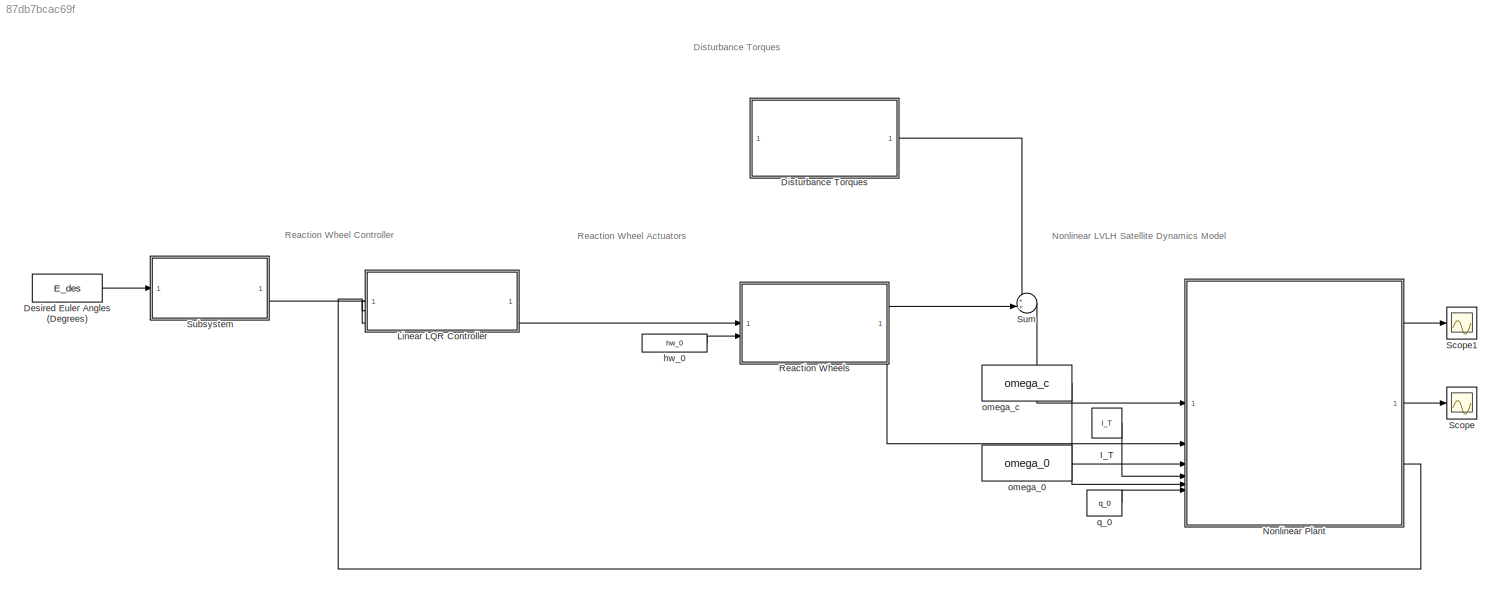
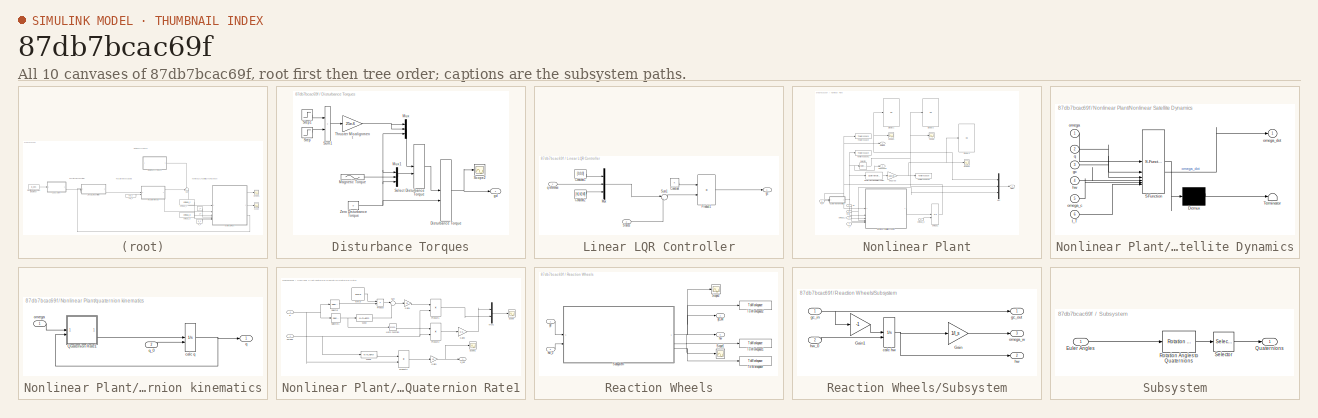
[diagram: thumbnail index - all 10 canvases of the model, root first then tree order]
MODEL slx_87db7bcac69f
KIND model
CONFIG AbsTol = auto
CONFIG EnableMultiTasking = off
CONFIG FixedStep = .1
CONFIG MaxStep = 0.1
CONFIG MinStep = auto
CONFIG RelTol = 1e-3
CONFIG SampleTimeConstraint = Unconstrained
CONFIG SolverName = VariableStepAuto
CONFIG StartTime = 0.0
CONFIG StopTime = 720
BLOCK [Constant] Desired Euler Angles (Degrees)
  Value = E_des
BLOCK [SubSystem] Disturbance Torques
BLOCK [ManualSwitch] Disturbance Torques/Disturbance Torque
BLOCK [Sin] Disturbance Torques/Magnetic Torque
  Amplitude = 2e-6
  Frequency = 2*omega_c
  SampleTime = 0
BLOCK [Mux] Disturbance Torques/Mux
  DisplayOption = bar
  Inputs = 3
BLOCK [Mux] Disturbance Torques/Mux1
  DisplayOption = bar
  Inputs = 3
BLOCK [Scope] Disturbance Torques/Scope2
  Floating = off
  NumInputPorts = 1
  ScopeSpecificationString = Simulink.scopes.TimeScopeBlockCfg('CurrentConfiguration', extmgr.ConfigurationSet(extmgr.Configuration('Core','General UI',true),extmgr.Configuration('Core','Source UI',true),extmgr.Configuration('Sources','WiredSimulink',true,'DataLoggingVariableName','ScopeData4'),extmgr.Configuration('Visuals','Time Domain',true,'SerializedDisplays',{struct('MinYLimReal','-0.000003','MaxYLimReal','0.000028','YL...<+1488ch>
BLOCK [ManualSwitch] Disturbance Torques/Select Disturbance Torque
BLOCK [Step] Disturbance Torques/Step
  After = -1
  SampleTime = 0
  Time = 300
BLOCK [Step] Disturbance Torques/Step1
  SampleTime = 0
  Time = 0
BLOCK [Sum] Disturbance Torques/Sum1
  IconShape = rectangular
BLOCK [Gain] Disturbance Torques/Thruster Misalignment
  Gain = 25e-6
BLOCK [Constant] Disturbance Torques/Zero Disturbance Torque
  Value = 0
BLOCK [Outport] Disturbance Torques/gd
BLOCK [Constant] I_T
  Value = I_T
BLOCK [SubSystem] Linear LQR Controller
  PortSchema = {"entries":[{"content":{"sides":[{"content":{"connectorIds":["Out1"]},"type":"ConnectorPlacement.EquallySpacedRectSide","uuid":"ee26b0f2-a486-452c-b447-e59bb95ac0cf"},{"content":{"connectorIds":["In1","In2"],"side":"RIGHT"},"type":"ConnectorPlacement.EquallySpacedRectSide","uuid":"56766a12-bb91-439a-8915-7afd5112c149"},{"content":{"connectorIds":[],"side":"TOP"},"type":"ConnectorPlacement.EquallyS...<+246ch>
BLOCK [Constant] Linear LQR Controller/Constant
  Value = K
BLOCK [Constant] Linear LQR Controller/Constant1
  Value = [0,0,0]
BLOCK [Constant] Linear LQR Controller/Constant2
  Value = [h1,h2,h3]
BLOCK [Mux] Linear LQR Controller/Mux
  DisplayOption = bar
  Inputs = 3
BLOCK [Product] Linear LQR Controller/Product1
  Multiplication = Matrix(*)
BLOCK [Inport] Linear LQR Controller/States
  Port = 2
BLOCK [Sum] Linear LQR Controller/Sum1
  Inputs = |+-
BLOCK [Outport] Linear LQR Controller/gc
BLOCK [Inport] Linear LQR Controller/q reference
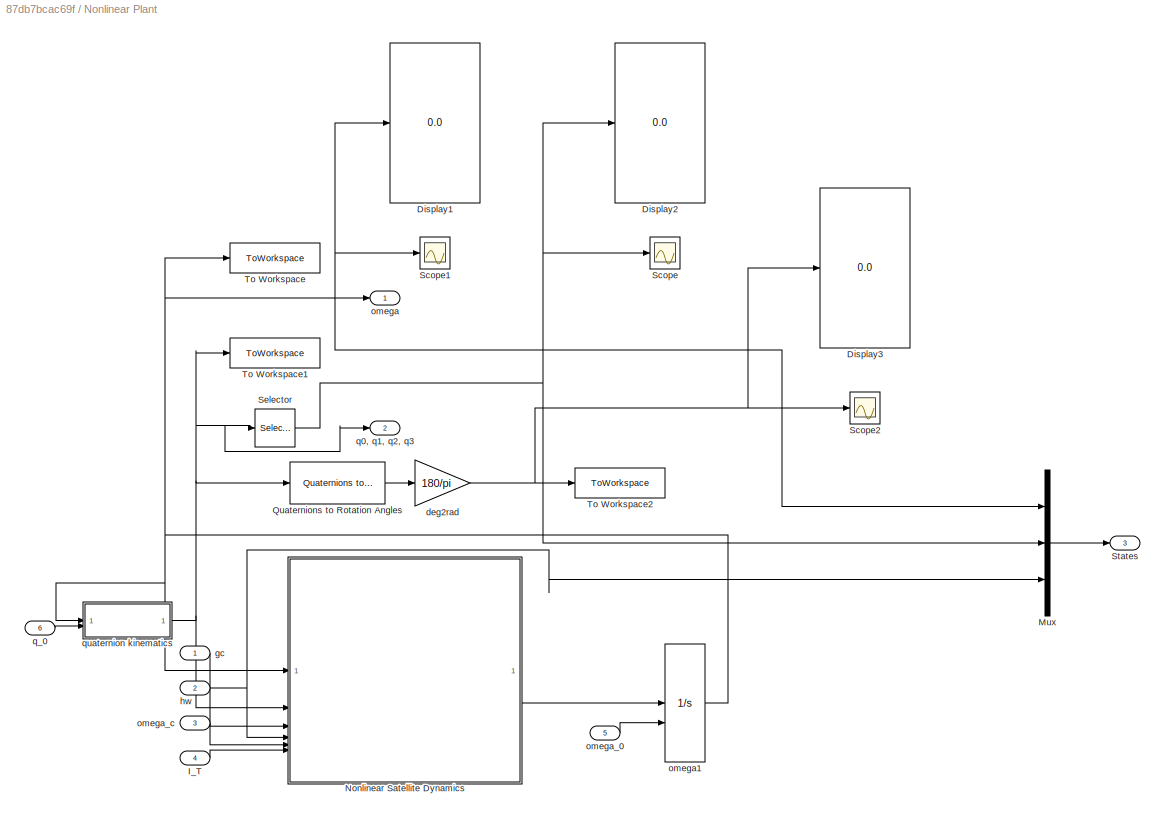
BLOCK [SubSystem] Nonlinear Plant
BLOCK [Display] Nonlinear Plant/Display1
  Decimation = 1
BLOCK [Display] Nonlinear Plant/Display2
  Decimation = 1
BLOCK [Display] Nonlinear Plant/Display3
  Decimation = 1
BLOCK [Inport] Nonlinear Plant/I_T
  Port = 4
BLOCK [Mux] Nonlinear Plant/Mux
  DisplayOption = bar
  Inputs = 3
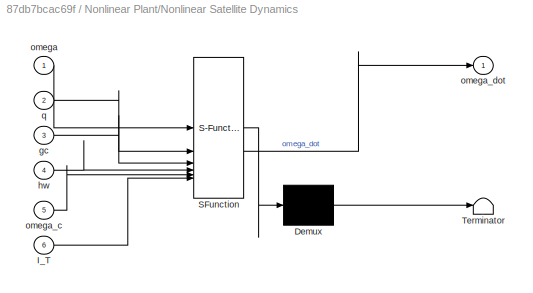
BLOCK [SubSystem] Nonlinear Plant/Nonlinear Satellite Dynamics
  ErrorFcn = Stateflow.Translate.translate
  LibrarySourceBlock = simulink/User-Defined\nFunctions/MATLAB Function
  PermitHierarchicalResolution = ExplicitOnly
  SFBlockType = MATLAB Function
  TreatAsAtomicUnit = on
BLOCK [Demux] Nonlinear Plant/Nonlinear Satellite Dynamics/ Demux 
  Outputs = 1
BLOCK [S-Function] Nonlinear Plant/Nonlinear Satellite Dynamics/ SFunction 
  EnableBusSupport = on
  FunctionName = sf_sfun
  PortCounts = [6 2]
  SFcnIsStateOwnerBlock = off
  SFunctionDeploymentMode = off
  Tag = Stateflow S-Function 3
BLOCK [Terminator] Nonlinear Plant/Nonlinear Satellite Dynamics/ Terminator 
BLOCK [Inport] Nonlinear Plant/Nonlinear Satellite Dynamics/I_T
  Port = 6
BLOCK [Inport] Nonlinear Plant/Nonlinear Satellite Dynamics/gc
  Port = 3
BLOCK [Inport] Nonlinear Plant/Nonlinear Satellite Dynamics/hw
  Port = 4
BLOCK [Inport] Nonlinear Plant/Nonlinear Satellite Dynamics/omega
BLOCK [Inport] Nonlinear Plant/Nonlinear Satellite Dynamics/omega_c
  Port = 5
BLOCK [Outport] Nonlinear Plant/Nonlinear Satellite Dynamics/omega_dot
BLOCK [Inport] Nonlinear Plant/Nonlinear Satellite Dynamics/q
  Port = 2
BLOCK [Reference] Nonlinear Plant/Quaternions to Rotation Angles  REF=sharedtransform/Quaternions to Rotation Angles
  AttributesFormatString = Rotation Order: %<rotationOrder>
  LibrarySourceBlock = aerolibtransform2/Quaternions to Rotation Angles
  SourceBlock = sharedtransform/Quaternions to Rotation Angles
  SourceType = Quat2Ang
BLOCK [Scope] Nonlinear Plant/Scope
  Floating = off
  NumInputPorts = 1
  ScopeSpecificationString = Simulink.scopes.TimeScopeBlockCfg('CurrentConfiguration', extmgr.ConfigurationSet(extmgr.Configuration('Core','General UI',true),extmgr.Configuration('Core','Source UI',true),extmgr.Configuration('Sources','WiredSimulink',true),extmgr.Configuration('Visuals','Time Domain',true,'SerializedDisplays',{struct('MinYLimReal','-0.00568','MaxYLimReal','0.05112','YLabelReal','','MinYLimMag','0.00000','MaxY...<+1383ch>
BLOCK [Scope] Nonlinear Plant/Scope1
  Floating = off
  NumInputPorts = 1
  ScopeSpecificationString = Simulink.scopes.TimeScopeBlockCfg('CurrentConfiguration', extmgr.ConfigurationSet(extmgr.Configuration('Core','General UI',true),extmgr.Configuration('Core','Source UI',true),extmgr.Configuration('Sources','WiredSimulink',true,'DataLoggingVariableName','ScopeData2'),extmgr.Configuration('Visuals','Time Domain',true,'SerializedDisplays',{struct('MinYLimReal','-0.08705','MaxYLimReal','0.218','YLabel...<+1479ch>
BLOCK [Scope] Nonlinear Plant/Scope2
  Floating = off
  NumInputPorts = 1
  ScopeSpecificationString = Simulink.scopes.TimeScopeBlockCfg('CurrentConfiguration', extmgr.ConfigurationSet(extmgr.Configuration('Core','General UI',true),extmgr.Configuration('Core','Source UI',true),extmgr.Configuration('Sources','WiredSimulink',true,'DataLoggingVariableName','ScopeData1'),extmgr.Configuration('Visuals','Time Domain',true,'SerializedDisplays',{struct('MinYLimReal','-56.14746','MaxYLimReal','56.23861','YL...<+1496ch>
BLOCK [Selector] Nonlinear Plant/Selector
  IndexOptions = Index vector (dialog)
  Indices = [2 3 4]
  InputPortWidth = 4
  OutputSizes = 1
BLOCK [Outport] Nonlinear Plant/States
  Port = 3
BLOCK [ToWorkspace] Nonlinear Plant/To Workspace
  FixptAsFi = on
  MaxDataPoints = inf
  SampleTime = -1
  SaveFormat = Timeseries
  VariableName = omega
BLOCK [ToWorkspace] Nonlinear Plant/To Workspace1
  FixptAsFi = on
  MaxDataPoints = inf
  SampleTime = -1
  SaveFormat = Timeseries
  VariableName = q
BLOCK [ToWorkspace] Nonlinear Plant/To Workspace2
  FixptAsFi = on
  MaxDataPoints = inf
  SampleTime = -1
  SaveFormat = Timeseries
  VariableName = RPY
BLOCK [Gain] Nonlinear Plant/deg2rad
  Gain = 180/pi
BLOCK [Inport] Nonlinear Plant/gc
BLOCK [Inport] Nonlinear Plant/hw
  Port = 2
BLOCK [Outport] Nonlinear Plant/omega
BLOCK [Integrator] Nonlinear Plant/omega1
  InitialConditionSource = external
BLOCK [Inport] Nonlinear Plant/omega_0
  Port = 5
BLOCK [Inport] Nonlinear Plant/omega_c
  Port = 3
BLOCK [Outport] Nonlinear Plant/q0, q1, q2, q3
  Port = 2
BLOCK [Inport] Nonlinear Plant/q_0
  Port = 6
BLOCK [SubSystem] Nonlinear Plant/quaternion kinematics
BLOCK [SubSystem] Nonlinear Plant/quaternion kinematics/Quaternion Rate1
BLOCK [Gain] Nonlinear Plant/quaternion kinematics/Quaternion Rate1/Gain1
  Gain = 0.5
BLOCK [Gain] Nonlinear Plant/quaternion kinematics/Quaternion Rate1/Gain2
  Gain = -0.5
BLOCK [Gain] Nonlinear Plant/quaternion kinematics/Quaternion Rate1/Gain3
  Gain = 0.5
BLOCK [Math] Nonlinear Plant/quaternion kinematics/Quaternion Rate1/Math Function
  Operator = transpose
BLOCK [Mux] Nonlinear Plant/quaternion kinematics/Quaternion Rate1/Mux1
  DisplayOption = bar
  Inputs = 2
BLOCK [Product] Nonlinear Plant/quaternion kinematics/Quaternion Rate1/Product
BLOCK [Product] Nonlinear Plant/quaternion kinematics/Quaternion Rate1/Product1
  Multiplication = Matrix(*)
BLOCK [Product] Nonlinear Plant/quaternion kinematics/Quaternion Rate1/Product2
  Multiplication = Matrix(*)
BLOCK [Product] Nonlinear Plant/quaternion kinematics/Quaternion Rate1/Product3
  Multiplication = Matrix(*)
BLOCK [Scope] Nonlinear Plant/quaternion kinematics/Quaternion Rate1/Scope
  Floating = off
  NumInputPorts = 1
  ScopeSpecificationString = Simulink.scopes.TimeScopeBlockCfg('CurrentConfiguration', extmgr.ConfigurationSet(extmgr.Configuration('Core','General UI',true),extmgr.Configuration('Core','Source UI',true),extmgr.Configuration('Sources','WiredSimulink',true,'DataLoggingVariableName','ScopeData5'),extmgr.Configuration('Visuals','Time Domain',true,'SerializedDisplays',{struct('MinYLimReal','-0.00062','MaxYLimReal','0.00062','YLab...<+1417ch>
BLOCK [Scope] Nonlinear Plant/quaternion kinematics/Quaternion Rate1/Scope1
  Floating = off
  NumInputPorts = 1
  ScopeSpecificationString = Simulink.scopes.TimeScopeBlockCfg('CurrentConfiguration', extmgr.ConfigurationSet(extmgr.Configuration('Core','General UI',true),extmgr.Configuration('Core','Source UI',true),extmgr.Configuration('Sources','WiredSimulink',true,'DataLoggingVariableName','ScopeData6'),extmgr.Configuration('Visuals','Time Domain',true,'SerializedDisplays',{struct('MinYLimReal','-0.00062','MaxYLimReal','0.00062','YLab...<+1426ch>
BLOCK [Selector] Nonlinear Plant/quaternion kinematics/Quaternion Rate1/Selector
  IndexOptions = Index vector (dialog)
  Indices = [1]
  InputPortWidth = 4
  OutputSizes = 1
BLOCK [Selector] Nonlinear Plant/quaternion kinematics/Quaternion Rate1/Selector1
  IndexOptions = Index vector (dialog)
  Indices = [2 3 4]
  InputPortWidth = 4
  OutputSizes = 1
BLOCK [Sum] Nonlinear Plant/quaternion kinematics/Quaternion Rate1/Sum
  Inputs = |++
BLOCK [Constant] Nonlinear Plant/quaternion kinematics/Quaternion Rate1/eye(3)
  Value = eye(3)
BLOCK [Inport] Nonlinear Plant/quaternion kinematics/Quaternion Rate1/omega
BLOCK [Inport] Nonlinear Plant/quaternion kinematics/Quaternion Rate1/q
  Port = 2
BLOCK [Outport] Nonlinear Plant/quaternion kinematics/Quaternion Rate1/q_dot
BLOCK [MATLABFcn] Nonlinear Plant/quaternion kinematics/Quaternion Rate1/skew
  MATLABFcn = [0,-u(3),u(2);u(3),0,-u(1);-u(2),u(1),0]
  Output1D = off
BLOCK [MATLABFcn] Nonlinear Plant/quaternion kinematics/Quaternion Rate1/skew1
  MATLABFcn = [0,-u(1),-u(2),-u(3);u(1),0,u(3),-u(2);u(2),-u(3),0,u(1);u(3),u(2),-u(1),0]
  Output1D = off
BLOCK [Integrator] Nonlinear Plant/quaternion kinematics/calc q
  InitialConditionSource = external
BLOCK [Inport] Nonlinear Plant/quaternion kinematics/omega
BLOCK [Outport] Nonlinear Plant/quaternion kinematics/q
BLOCK [Inport] Nonlinear Plant/quaternion kinematics/q_0
  Port = 2
BLOCK [SubSystem] Reaction Wheels
BLOCK [Scope] Reaction Wheels/Scope1
  Floating = off
  NumInputPorts = 1
  ScopeSpecificationString = Simulink.scopes.TimeScopeBlockCfg('CurrentConfiguration', extmgr.ConfigurationSet(extmgr.Configuration('Core','General UI',true),extmgr.Configuration('Core','Source UI',true),extmgr.Configuration('Sources','WiredSimulink',true,'DataLoggingVariableName','ScopeData1'),extmgr.Configuration('Visuals','Time Domain',true,'SerializedDisplays',{struct('MinYLimReal','-2.81856','MaxYLimReal','4.39087','YLab...<+1460ch>
BLOCK [Scope] Reaction Wheels/Scope2
  Floating = off
  NumInputPorts = 1
  ScopeSpecificationString = Simulink.scopes.TimeScopeBlockCfg('CurrentConfiguration', extmgr.ConfigurationSet(extmgr.Configuration('Core','General UI',true),extmgr.Configuration('Core','Source UI',true),extmgr.Configuration('Sources','WiredSimulink',true,'DataLoggingVariableName','ScopeData2'),extmgr.Configuration('Visuals','Time Domain',true,'SerializedDisplays',{struct('MinYLimReal','-0.02746','MaxYLimReal','0.00575','YLab...<+1479ch>
BLOCK [SubSystem] Reaction Wheels/Subsystem
BLOCK [Gain] Reaction Wheels/Subsystem/Gain
  Gain = 1/I_s
BLOCK [Gain] Reaction Wheels/Subsystem/Gain1
  Gain = -1
BLOCK [Integrator] Reaction Wheels/Subsystem/calc hw
  InitialConditionSource = external
BLOCK [Inport] Reaction Wheels/Subsystem/gc_in
BLOCK [Outport] Reaction Wheels/Subsystem/gc_out
BLOCK [Outport] Reaction Wheels/Subsystem/hw
  Port = 2
BLOCK [Inport] Reaction Wheels/Subsystem/hw_0
  Port = 2
BLOCK [Outport] Reaction Wheels/Subsystem/omega_w
  Port = 3
BLOCK [ToWorkspace] Reaction Wheels/To Workspace
  FixptAsFi = on
  MaxDataPoints = inf
  SampleTime = -1
  SaveFormat = Timeseries
  VariableName = omega_w
BLOCK [ToWorkspace] Reaction Wheels/To Workspace1
  FixptAsFi = on
  MaxDataPoints = inf
  SampleTime = -1
  SaveFormat = Timeseries
  VariableName = hw
BLOCK [ToWorkspace] Reaction Wheels/To Workspace2
  FixptAsFi = on
  MaxDataPoints = inf
  SampleTime = -1
  SaveFormat = Timeseries
  VariableName = gc
BLOCK [Inport] Reaction Wheels/gc
BLOCK [Outport] Reaction Wheels/gc_out
BLOCK [Outport] Reaction Wheels/hw
  Port = 2
BLOCK [Inport] Reaction Wheels/hw_0
  Port = 2
BLOCK [Scope] Scope
  Floating = off
  NumInputPorts = 1
  ScopeSpecificationString = Simulink.scopes.TimeScopeBlockCfg('CurrentConfiguration', extmgr.ConfigurationSet(extmgr.Configuration('Core','General UI',true),extmgr.Configuration('Core','Source UI',true),extmgr.Configuration('Sources','WiredSimulink',true,'DataLoggingVariableName','ScopeData1'),extmgr.Configuration('Visuals','Time Domain',true,'SerializedDisplays',{struct('MinYLimReal','-0.00568','MaxYLimReal','0.05112','YLab...<+1422ch>
BLOCK [Scope] Scope1
  Floating = off
  NumInputPorts = 1
  ScopeSpecificationString = Simulink.scopes.TimeScopeBlockCfg('CurrentConfiguration', extmgr.ConfigurationSet(extmgr.Configuration('Core','General UI',true),extmgr.Configuration('Core','Source UI',true),extmgr.Configuration('Sources','WiredSimulink',true,'DataLoggingVariableName','ScopeData2'),extmgr.Configuration('Visuals','Time Domain',true,'SerializedDisplays',{struct('MinYLimReal','-0.00568','MaxYLimReal','0.05112','YLab...<+1422ch>
BLOCK [SubSystem] Subsystem
BLOCK [Inport] Subsystem/Euler Angles
BLOCK [Outport] Subsystem/Quaternions
BLOCK [Reference] Subsystem/Rotation Angles to Quaternions  REF=sharedtransform/Rotation Angles to Quaternions
  AttributesFormatString = Rotation Order: %<rotationOrder>
  SourceBlock = sharedtransform/Rotation Angles to Quaternions
  SourceType = Ang2Quat
BLOCK [Selector] Subsystem/Selector
  IndexOptions = Index vector (dialog)
  Indices = [2 3 4]
  InputPortWidth = 4
  OutputSizes = 1
BLOCK [Sum] Sum
  Inputs = ++|
BLOCK [Constant] hw_0
  Value = hw_0
BLOCK [Constant] omega_0
  Value = omega_0
BLOCK [Constant] omega_c
  Value = omega_c
BLOCK [Constant] q_0
  Value = q_0
ANNOTATION (root): Disturbance Torques
ANNOTATION (root): Nonlinear LVLH Satellite Dynamics Model
ANNOTATION (root): Reaction Wheel Actuators
ANNOTATION (root): Reaction Wheel Controller
LINE Desired Euler Angles (Degrees):1 -> Subsystem:1
NET Disturbance Torques/Disturbance Torque:1 -> Disturbance Torques/Scope2:1, Disturbance Torques/gd:1
LINE Disturbance Torques/Magnetic Torque:1 -> Disturbance Torques/Mux1:2
LINE Disturbance Torques/Mux1:1 -> Disturbance Torques/Select Disturbance Torque:2
LINE Disturbance Torques/Mux:1 -> Disturbance Torques/Select Disturbance Torque:1
LINE Disturbance Torques/Select Disturbance Torque:1 -> Disturbance Torques/Disturbance Torque:1
LINE Disturbance Torques/Step1:1 -> Disturbance Torques/Sum1:1
LINE Disturbance Torques/Step:1 -> Disturbance Torques/Sum1:2
LINE Disturbance Torques/Sum1:1 -> Disturbance Torques/Thruster Misalignment:1
NET Disturbance Torques/Thruster Misalignment:1 -> Disturbance Torques/Mux:1, Disturbance Torques/Mux:2
NET Disturbance Torques/Zero Disturbance Torque:1 -> Disturbance Torques/Disturbance Torque:2, Disturbance Torques/Mux1:1, Disturbance Torques/Mux1:3, Disturbance Torques/Mux:3
LINE Disturbance Torques:1 -> Sum:1
LINE I_T:1 -> Nonlinear Plant:4
LINE Linear LQR Controller/Constant1:1 -> Linear LQR Controller/Mux:1
LINE Linear LQR Controller/Constant2:1 -> Linear LQR Controller/Mux:3
LINE Linear LQR Controller/Constant:1 -> Linear LQR Controller/Product1:1
LINE Linear LQR Controller/Mux:1 -> Linear LQR Controller/Sum1:1
LINE Linear LQR Controller/Product1:1 -> Linear LQR Controller/gc:1
LINE Linear LQR Controller/States:1 -> Linear LQR Controller/Sum1:2
LINE Linear LQR Controller/Sum1:1 -> Linear LQR Controller/Product1:2
LINE Linear LQR Controller/q reference:1 -> Linear LQR Controller/Mux:2
LINE Linear LQR Controller:1 -> Reaction Wheels:1
LINE Nonlinear Plant/I_T:1 -> Nonlinear Plant/Nonlinear Satellite Dynamics:6
LINE Nonlinear Plant/Mux:1 -> Nonlinear Plant/States:1
LINE Nonlinear Plant/Nonlinear Satellite Dynamics:1 -> Nonlinear Plant/omega1:1
LINE Nonlinear Plant/Quaternions to Rotation Angles:1 -> Nonlinear Plant/deg2rad:1
NET Nonlinear Plant/Selector:1 -> Nonlinear Plant/Display2:1, Nonlinear Plant/Mux:2, Nonlinear Plant/Scope:1
NET Nonlinear Plant/deg2rad:1 -> Nonlinear Plant/Display3:1, Nonlinear Plant/Scope2:1, Nonlinear Plant/To Workspace2:1
LINE Nonlinear Plant/gc:1 -> Nonlinear Plant/Nonlinear Satellite Dynamics:3
NET Nonlinear Plant/hw:1 -> Nonlinear Plant/Mux:3, Nonlinear Plant/Nonlinear Satellite Dynamics:4
NET Nonlinear Plant/omega1:1 -> Nonlinear Plant/Display1:1, Nonlinear Plant/Mux:1, Nonlinear Plant/Nonlinear Satellite Dynamics:1, Nonlinear Plant/Scope1:1, Nonlinear Plant/To Workspace:1, Nonlinear Plant/omega:1, Nonlinear Plant/quaternion kinematics:1
LINE Nonlinear Plant/omega_0:1 -> Nonlinear Plant/omega1:2
LINE Nonlinear Plant/omega_c:1 -> Nonlinear Plant/Nonlinear Satellite Dynamics:5
LINE Nonlinear Plant/q_0:1 -> Nonlinear Plant/quaternion kinematics:2
LINE Nonlinear Plant/quaternion kinematics/Quaternion Rate1/Gain1:1 -> Nonlinear Plant/quaternion kinematics/Quaternion Rate1/Product1:1
LINE Nonlinear Plant/quaternion kinematics/Quaternion Rate1/Gain2:1 -> Nonlinear Plant/quaternion kinematics/Quaternion Rate1/Mux1:1
NET Nonlinear Plant/quaternion kinematics/Quaternion Rate1/Gain3:1 -> Nonlinear Plant/quaternion kinematics/Quaternion Rate1/Scope1:1, Nonlinear Plant/quaternion kinematics/Quaternion Rate1/q_dot:1
LINE Nonlinear Plant/quaternion kinematics/Quaternion Rate1/Math Function:1 -> Nonlinear Plant/quaternion kinematics/Quaternion Rate1/Product2:1
LINE Nonlinear Plant/quaternion kinematics/Quaternion Rate1/Mux1:1 -> Nonlinear Plant/quaternion kinematics/Quaternion Rate1/Scope:1
LINE Nonlinear Plant/quaternion kinematics/Quaternion Rate1/Product1:1 -> Nonlinear Plant/quaternion kinematics/Quaternion Rate1/Mux1:2
LINE Nonlinear Plant/quaternion kinematics/Quaternion Rate1/Product2:1 -> Nonlinear Plant/quaternion kinematics/Quaternion Rate1/Gain2:1
LINE Nonlinear Plant/quaternion kinematics/Quaternion Rate1/Product3:1 -> Nonlinear Plant/quaternion kinematics/Quaternion Rate1/Gain3:1
LINE Nonlinear Plant/quaternion kinematics/Quaternion Rate1/Product:1 -> Nonlinear Plant/quaternion kinematics/Quaternion Rate1/Sum:1
NET Nonlinear Plant/quaternion kinematics/Quaternion Rate1/Selector1:1 -> Nonlinear Plant/quaternion kinematics/Quaternion Rate1/Math Function:1, Nonlinear Plant/quaternion kinematics/Quaternion Rate1/skew:1
LINE Nonlinear Plant/quaternion kinematics/Quaternion Rate1/Selector:1 -> Nonlinear Plant/quaternion kinematics/Quaternion Rate1/Product:2
LINE Nonlinear Plant/quaternion kinematics/Quaternion Rate1/Sum:1 -> Nonlinear Plant/quaternion kinematics/Quaternion Rate1/Gain1:1
LINE Nonlinear Plant/quaternion kinematics/Quaternion Rate1/eye(3):1 -> Nonlinear Plant/quaternion kinematics/Quaternion Rate1/Product:1
NET Nonlinear Plant/quaternion kinematics/Quaternion Rate1/omega:1 -> Nonlinear Plant/quaternion kinematics/Quaternion Rate1/Product1:2, Nonlinear Plant/quaternion kinematics/Quaternion Rate1/Product2:2, Nonlinear Plant/quaternion kinematics/Quaternion Rate1/skew1:1
NET Nonlinear Plant/quaternion kinematics/Quaternion Rate1/q:1 -> Nonlinear Plant/quaternion kinematics/Quaternion Rate1/Product3:2, Nonlinear Plant/quaternion kinematics/Quaternion Rate1/Selector1:1, Nonlinear Plant/quaternion kinematics/Quaternion Rate1/Selector:1
LINE Nonlinear Plant/quaternion kinematics/Quaternion Rate1/skew1:1 -> Nonlinear Plant/quaternion kinematics/Quaternion Rate1/Product3:1
LINE Nonlinear Plant/quaternion kinematics/Quaternion Rate1/skew:1 -> Nonlinear Plant/quaternion kinematics/Quaternion Rate1/Sum:2
LINE Nonlinear Plant/quaternion kinematics/Quaternion Rate1:1 -> Nonlinear Plant/quaternion kinematics/calc q:1
NET Nonlinear Plant/quaternion kinematics/calc q:1 -> Nonlinear Plant/quaternion kinematics/Quaternion Rate1:2, Nonlinear Plant/quaternion kinematics/q:1
LINE Nonlinear Plant/quaternion kinematics/omega:1 -> Nonlinear Plant/quaternion kinematics/Quaternion Rate1:1
LINE Nonlinear Plant/quaternion kinematics/q_0:1 -> Nonlinear Plant/quaternion kinematics/calc q:2
NET Nonlinear Plant/quaternion kinematics:1 -> Nonlinear Plant/Nonlinear Satellite Dynamics:2, Nonlinear Plant/Quaternions to Rotation Angles:1, Nonlinear Plant/Selector:1, Nonlinear Plant/To Workspace1:1, Nonlinear Plant/q0, q1, q2, q3:1
LINE Nonlinear Plant:1 -> Scope1:1
LINE Nonlinear Plant:2 -> Scope:1
LINE Nonlinear Plant:3 -> Linear LQR Controller:2
LINE Reaction Wheels/Subsystem/Gain1:1 -> Reaction Wheels/Subsystem/calc hw:1
LINE Reaction Wheels/Subsystem/Gain:1 -> Reaction Wheels/Subsystem/omega_w:1
NET Reaction Wheels/Subsystem/calc hw:1 -> Reaction Wheels/Subsystem/Gain:1, Reaction Wheels/Subsystem/hw:1
NET Reaction Wheels/Subsystem/gc_in:1 -> Reaction Wheels/Subsystem/Gain1:1, Reaction Wheels/Subsystem/gc_out:1
LINE Reaction Wheels/Subsystem/hw_0:1 -> Reaction Wheels/Subsystem/calc hw:2
NET Reaction Wheels/Subsystem:1 -> Reaction Wheels/Scope2:1, Reaction Wheels/To Workspace2:1, Reaction Wheels/gc_out:1
NET Reaction Wheels/Subsystem:2 -> Reaction Wheels/To Workspace1:1, Reaction Wheels/hw:1
NET Reaction Wheels/Subsystem:3 -> Reaction Wheels/Scope1:1, Reaction Wheels/To Workspace:1
LINE Reaction Wheels/gc:1 -> Reaction Wheels/Subsystem:1
LINE Reaction Wheels/hw_0:1 -> Reaction Wheels/Subsystem:2
LINE Reaction Wheels:1 -> Sum:2
LINE Reaction Wheels:2 -> Nonlinear Plant:2
LINE Subsystem/Euler Angles:1 -> Subsystem/Rotation Angles to Quaternions:1
LINE Subsystem/Rotation Angles to Quaternions:1 -> Subsystem/Selector:1
LINE Subsystem/Selector:1 -> Subsystem/Quaternions:1
LINE Subsystem:1 -> Linear LQR Controller:1
LINE Sum:1 -> Nonlinear Plant:1
LINE hw_0:1 -> Reaction Wheels:2
LINE omega_0:1 -> Nonlinear Plant:5
LINE omega_c:1 -> Nonlinear Plant:3
LINE q_0:1 -> Nonlinear Plant:6
note: NET lines group one-source signal fan-out (src -> all destinations, sorted); 1:1 wires keep LINE
CHART Nonlinear Plant/Nonlinear Satellite Dynamics states=1 transitions=1
  STATE_LABEL 'eML_blk_kernel()'
  STATE_LABEL 'SCRIPT:\nfunction omega_dot = fcn(omega,q,gc,hw,omega_c,I_T)\n\nq0 = q(1);\nq1 = q(2);\nq2 = q(3);\nq3 = q(4);\n\nQ1 = [2*q0^2 - 1 + 2*q1^2;...\n    2*q1*q2 - 2*q0*q3;...\n    2*q1*q3 + 2*q0*q2];\n\nQ2 = [2*q1*q2 + 2*q0*q3;...\n    2*q0^2 - 1 + 2*q2^2;...\n    2*q2*q3 - 2*q0*q1];\n\nQ3 = [2*q1*q3 - 2*q0*q2;...\n    2*q2*q3 + 2*q0*q1;...\n    2*q0^2 - 1 + 2*q3^2];\n\nQ_po = [Q1,Q2,Q3];\n\nw_c = [0;-omega_c;0];\n\ninvI_T =...<+291ch>'
CHART  states=0 transitions=0
